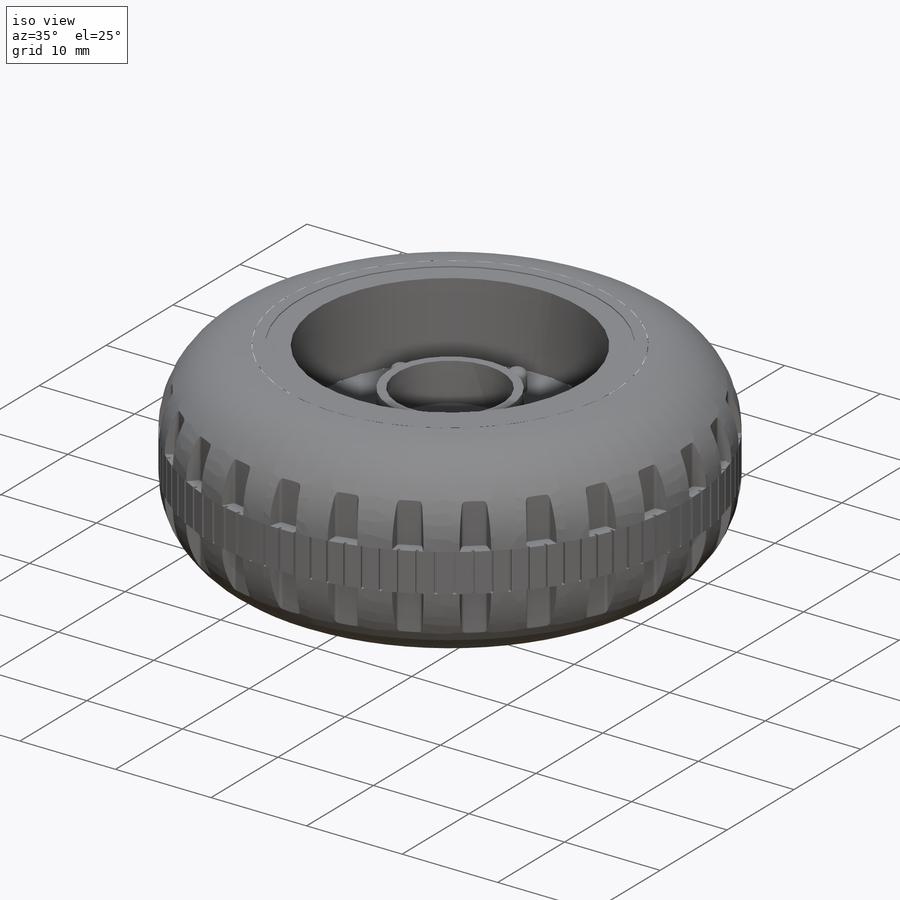
[diagram: iso view]
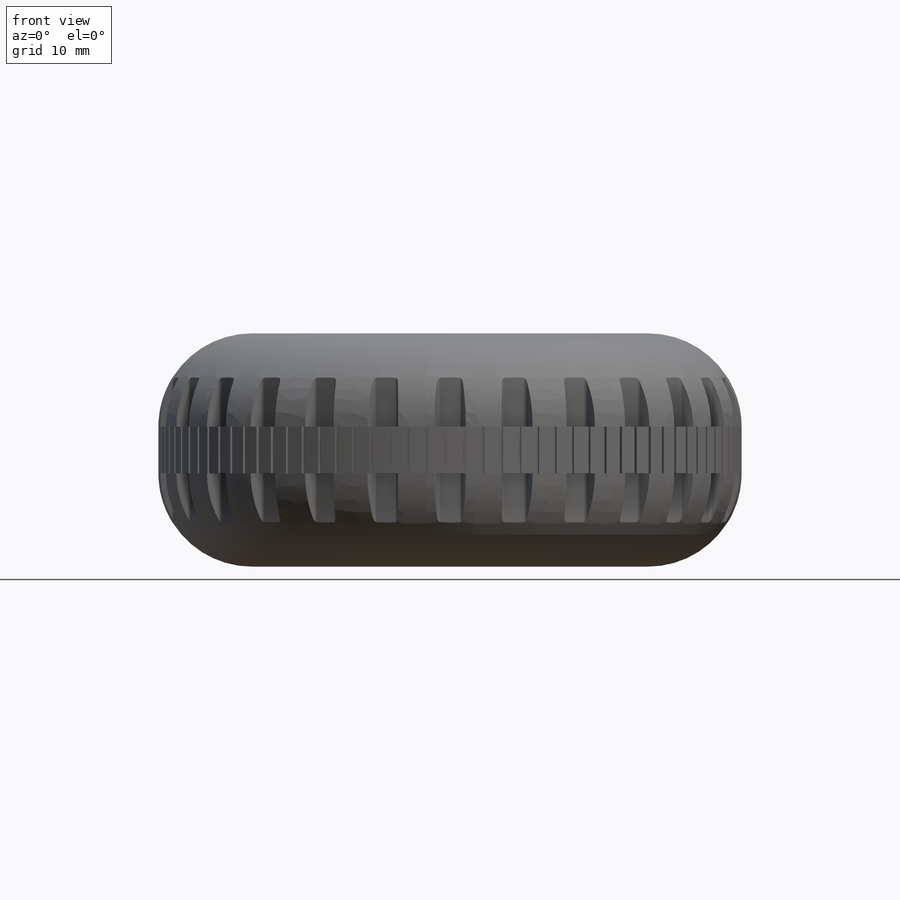
[diagram: front view]
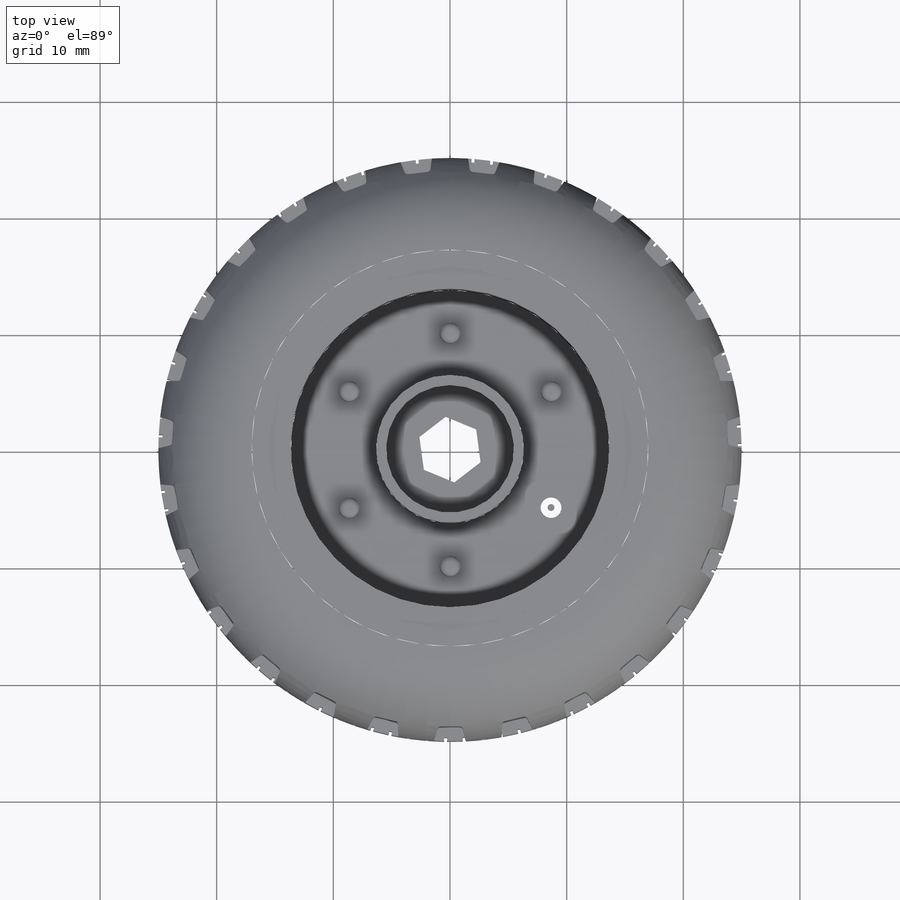
[diagram: top view]
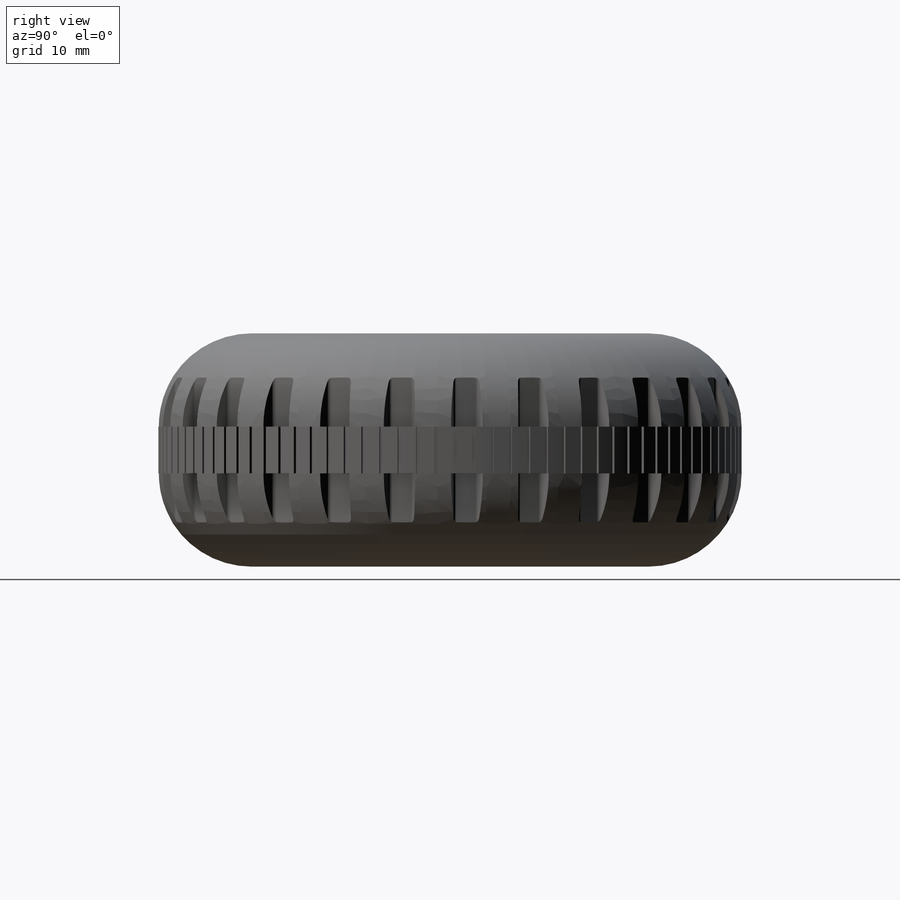
[diagram: right view]
SOLIDWORKS PART (.sldprt)
format: sldprt  version: not decoded by parser v0  size: 1,752,064 bytes
history: native  units: mm
features: sketch x10, extrude x5, cut_extrude x5, plane x4, mirror x4, pattern_circular x3, fillet x2, material x1 (+10 scaffold rows collapsed)
feature tree (44):
  scaffold x10  (default folders/planes/origin — collapsed)
  material  "Matériau <non spécifié>"
  plane  "Plan de face"
  plane  "Plan de dessus"
  plane  "Plan de droite"
  sketch  "Esquisse1"  dims[D1=50.0mm]
  extrude  "Boss.-Extru.1"  Depth=20mm
  fillet  "Congé1"  Radius=8mm
  sketch  "Esquisse2"  dims[c1.D3=0.3mm c1.D1=~5.131659mm c2.D1=15.0deg c2.D2=~4.94967mm c3.D2=15.0deg]
  cut_extrude  "Enlèv. mat.-Extru.1"  Depth=8mm
  pattern_circular  "Répétition circulaire1"  Count=27 Angle=360deg
  plane  "Plan1"  Offset=10mm
  mirror  "Symétrie1"
  sketch  "Esquisse3"
  cut_extrude  "Enlèv. mat.-Extru.2"  Depth=4mm
  pattern_circular  "Répétition circulaire2"  Count=98 Angle=360deg
  sketch  "Esquisse4"
  cut_extrude  "Enlèv. mat.-Extru.3"  Depth=0.1mm
  sketch  "Esquisse5"
  cut_extrude  "Enlèv. mat.-Extru.4"  Depth=8mm
  sketch  "Esquisse6"
  extrude  "Boss.-Extru.2"  Depth=4mm
  sketch  "Esquisse7"  dims[D1=10.0mm]
  extrude  "Boss.-Extru.3"  Depth=2mm
  fillet  "Congé2"  Radius=0.6mm
  pattern_circular  "Répétition circulaire4"  Count=6 Angle=360deg
  sketch  "Esquisse8"
  extrude  "Boss.-Extru.4"  Depth=2mm
  mirror  "Symétrie6"
  mirror  "Symétrie7"
  mirror  "Symétrie8"
  sketch  "Esquisse9"
  cut_extrude  "Enlèv. mat.-Extru.5"  Depth=3mm
  sketch  "Esquisse10"
  extrude  "Boss.-Extru.6"  Depth=65mm
decode coverage: 18 of 29 modeling features carry decoded parameters
note: ~ marks probable driven/reference dimensions
note: suppression state not decoded; provenance and decode notes live in map.json
